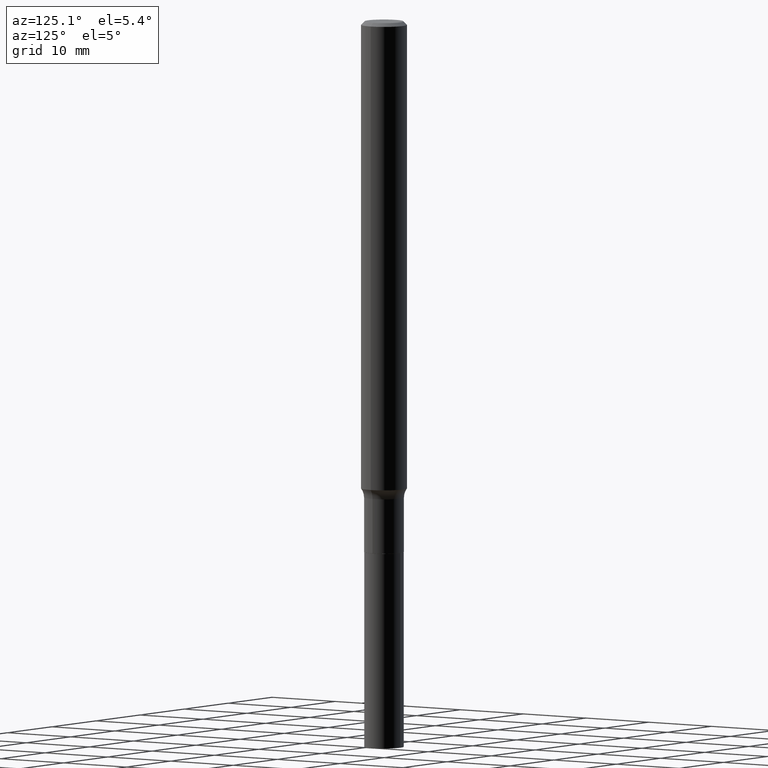
[diagram: clean part render]
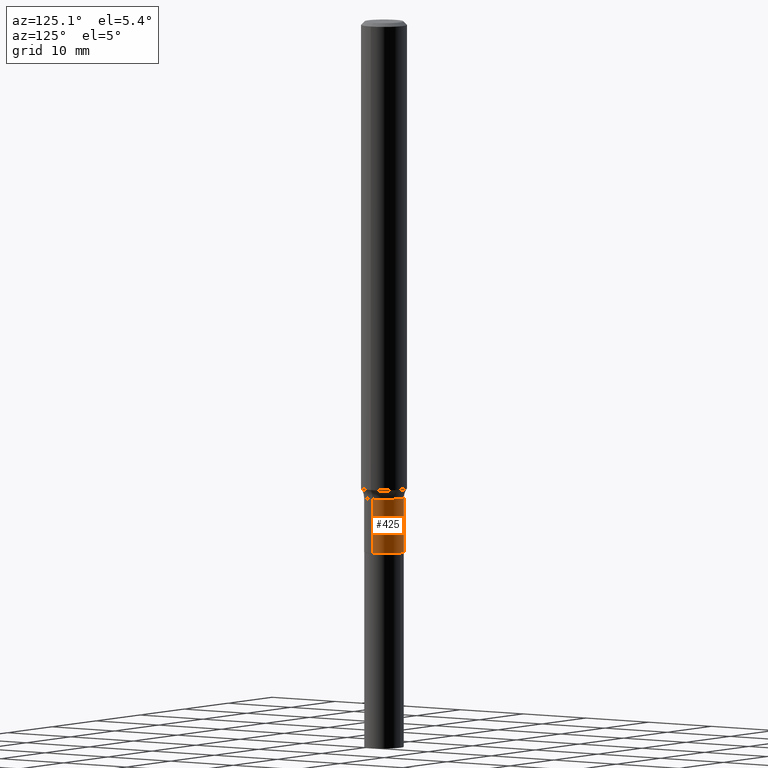
[diagram: same view with one face highlighted and labeled with its STEP entity id]
A machine part, auxiliary view. The second image highlights one B-rep face of the part: STEP entity #425.
In plain terms, the highlighted cylindrical surface (edge-blend (fillet) strip) has radius 2.5997 mm, axis along (-0, 0, 1).
Its self-contained STEP definition (entity closure, byte-faithful):
#1 = ORIENTED_EDGE ( 'NONE', *, *, #144, .F. ) ;
#5 = AXIS2_PLACEMENT_3D ( 'NONE', #61, #283, #91 ) ;
#11 = EDGE_CURVE ( 'NONE', #125, #241, #262, .T. ) ;
#18 = CARTESIAN_POINT ( 'NONE',  ( 0.1023499999999999688, -9.288038657590533619E-15, -2.455500000000000238 ) ) ;
#23 = CARTESIAN_POINT ( 'NONE',  ( 0.1023499999999999965, -1.026635172873438366E-14, -2.735700000000000021 ) ) ;
#25 = DIRECTION ( 'NONE',  ( 1.000000000000000000, -6.982962677686270655E-15, 0.000000000000000000 ) ) ;
#38 = EDGE_CURVE ( 'NONE', #105, #101, #296, .T. ) ;
#61 = CARTESIAN_POINT ( 'NONE',  ( 6.004848653587603460E-29, -8.573332427529345603E-15, -2.455500000000000238 ) ) ;
#82 = DIRECTION ( 'NONE',  ( -2.445468806185136877E-29, 3.491481338843145188E-15, 1.000000000000000000 ) ) ;
#91 = DIRECTION ( 'NONE',  ( 1.000000000000000000, -6.982962677686262766E-15, 0.000000000000000000 ) ) ;
#92 = CIRCLE ( 'NONE', #5, 0.1023499999999999688 ) ;
#101 = VERTEX_POINT ( 'NONE', #421 ) ;
#105 = VERTEX_POINT ( 'NONE', #234 ) ;
#115 = VECTOR ( 'NONE', #157, 39.37007874015748143 ) ;
#125 = VERTEX_POINT ( 'NONE', #23 ) ;
#126 = EDGE_CURVE ( 'NONE', #125, #105, #190, .T. ) ;
#131 = CARTESIAN_POINT ( 'NONE',  ( 6.690069013080677573E-29, -9.551645498673194068E-15, -2.735700000000000021 ) ) ;
#144 = EDGE_CURVE ( 'NONE', #241, #101, #92, .T. ) ;
#147 = FACE_OUTER_BOUND ( 'NONE', #192, .T. ) ;
#157 = DIRECTION ( 'NONE',  ( -2.445468806185136877E-29, 3.491481338843145188E-15, 1.000000000000000000 ) ) ;
#160 = CARTESIAN_POINT ( 'NONE',  ( 0.1023499999999999827, -7.147062300611892976E-16, 4.990766930027139796E-30 ) ) ;
#183 = VECTOR ( 'NONE', #82, 39.37007874015748143 ) ;
#185 = CARTESIAN_POINT ( 'NONE',  ( -0.1023499999999999827, 7.272404900504624170E-16, -5.034530064875895945E-30 ) ) ;
#190 = CIRCLE ( 'NONE', #405, 0.1023499999999999965 ) ;
#192 = EDGE_LOOP ( 'NONE', ( #302, #196, #1, #226 ) ) ;
#196 = ORIENTED_EDGE ( 'NONE', *, *, #38, .T. ) ;
#226 = ORIENTED_EDGE ( 'NONE', *, *, #11, .F. ) ;
#231 = DIRECTION ( 'NONE',  ( -2.445468806185136597E-29, 3.491481338843145583E-15, 1.000000000000000000 ) ) ;
#234 = CARTESIAN_POINT ( 'NONE',  ( -0.1023499999999999965, -8.335248473050806926E-15, -2.735700000000000021 ) ) ;
#241 = VERTEX_POINT ( 'NONE', #18 ) ;
#262 = LINE ( 'NONE', #160, #183 ) ;
#283 = DIRECTION ( 'NONE',  ( -2.445468806185136597E-29, 3.491481338843145583E-15, 1.000000000000000000 ) ) ;
#292 = AXIS2_PLACEMENT_3D ( 'NONE', #326, #231, #393 ) ;
#296 = LINE ( 'NONE', #185, #115 ) ;
#302 = ORIENTED_EDGE ( 'NONE', *, *, #126, .T. ) ;
#326 = CARTESIAN_POINT ( 'NONE',  ( 0.000000000000000000, 0.000000000000000000, 0.000000000000000000 ) ) ;
#372 = CYLINDRICAL_SURFACE ( 'NONE', #292, 0.1023499999999999827 ) ;
#381 = DIRECTION ( 'NONE',  ( -2.445468806185136597E-29, 3.491481338843145583E-15, 1.000000000000000000 ) ) ;
#393 = DIRECTION ( 'NONE',  ( 1.000000000000000000, -6.982962677686266711E-15, 4.876176775795936353E-29 ) ) ;
#405 = AXIS2_PLACEMENT_3D ( 'NONE', #131, #381, #25 ) ;
#421 = CARTESIAN_POINT ( 'NONE',  ( -0.1023499999999999688, -8.335248473050806926E-15, -2.455500000000000238 ) ) ;
#425 = ADVANCED_FACE ( 'NONE', ( #147 ), #372, .T. ) ;